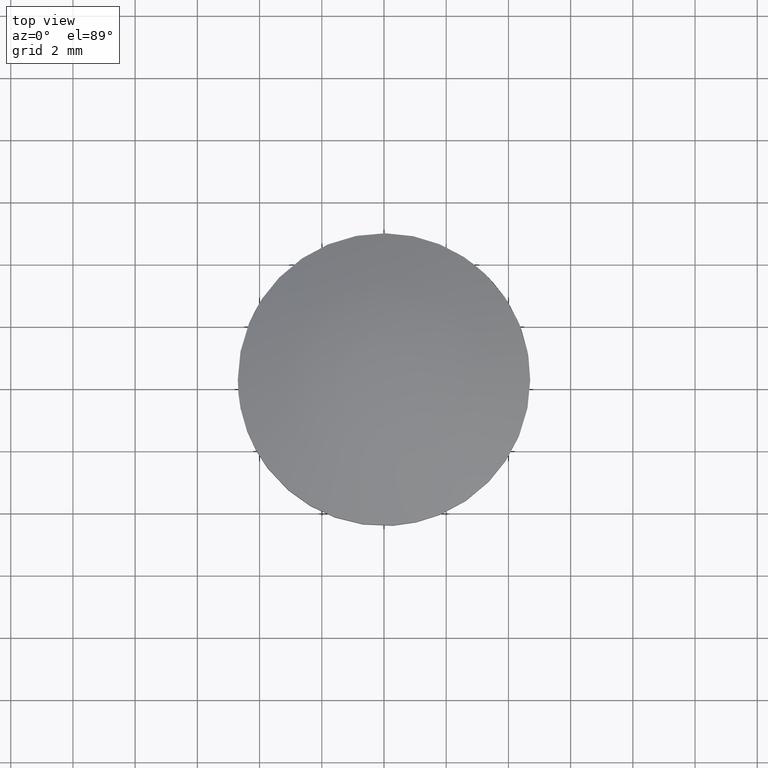
[diagram: clean part render]
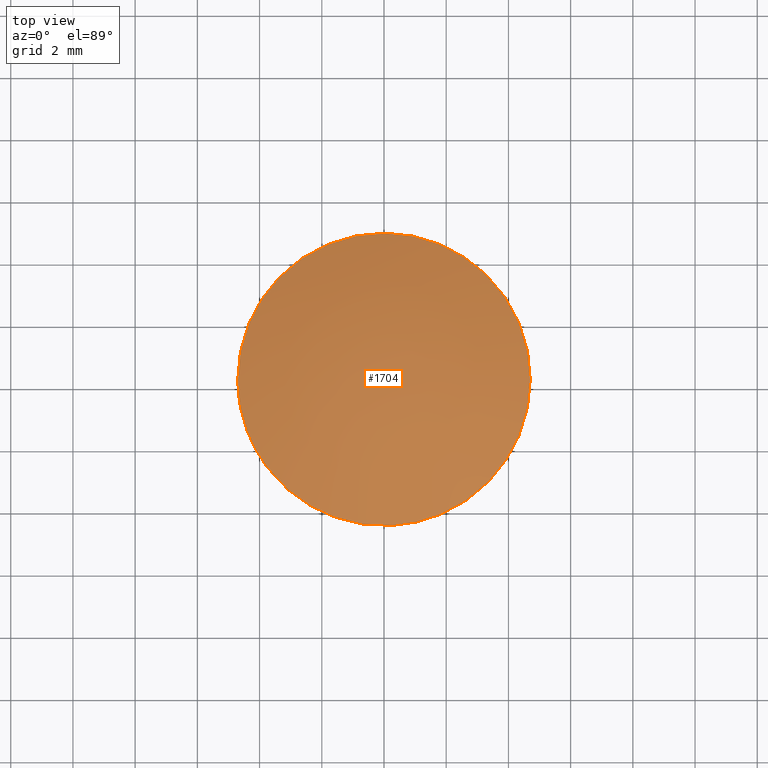
[diagram: same view with one face highlighted and labeled with its STEP entity id]
A machine part, top view. The second image highlights one B-rep face of the part: STEP entity #1704.
In plain terms, the highlighted face is a freeform B-spline surface patch.
Its self-contained STEP definition (entity closure, byte-faithful):
#1327=CARTESIAN_POINT('',(-4.399881813166960,-1.652602831381717,5.499996454043682));
#1328=VERTEX_POINT('',#1327);
#1334=CARTESIAN_POINT('',(-4.700007955760090,0.0,5.499996454043680));
#1335=VERTEX_POINT('',#1334);
#1336=CARTESIAN_POINT('',(-4.399881813166959,-1.652602831381717,5.499996454043682));
#1337=CARTESIAN_POINT('',(-4.700007024792281,-0.853553742750973,5.499996454043681));
#1338=CARTESIAN_POINT('',(-4.700007955760090,0.0,5.499996454043680));
#1346=(BOUNDED_CURVE()B_SPLINE_CURVE(2,(#1336,#1337,#1338),.UNSPECIFIED.,.F.,.U.)B_SPLINE_CURVE_WITH_KNOTS((3,3),(0.940284305386098,1.0),.UNSPECIFIED.)CURVE()GEOMETRIC_REPRESENTATION_ITEM()RATIONAL_B_SPLINE_CURVE((0.893499719216330,0.930038711963413,1.0))REPRESENTATION_ITEM(''));
#1347=EDGE_CURVE('',#1328,#1335,#1346,.T.);
#1349=CARTESIAN_POINT('',(4.700007955760090,0.0,5.499996454043680));
#1350=VERTEX_POINT('',#1349);
#1351=CARTESIAN_POINT('',(-4.700007955760090,0.0,5.499996454043680));
#1352=CARTESIAN_POINT('',(-4.700007955760091,4.700007955760091,5.499996454043679));
#1353=CARTESIAN_POINT('',(0.0,4.700007955760090,5.499996454043680));
#1354=CARTESIAN_POINT('',(4.700007955760091,4.700007955760091,5.499996454043679));
#1355=CARTESIAN_POINT('',(4.700007955760090,0.0,5.499996454043680));
#1363=(BOUNDED_CURVE()B_SPLINE_CURVE(2,(#1351,#1352,#1353,#1354,#1355),.UNSPECIFIED.,.F.,.U.)B_SPLINE_CURVE_WITH_KNOTS((3,2,3),(0.0,0.250000000000000,0.500000000000000),.UNSPECIFIED.)CURVE()GEOMETRIC_REPRESENTATION_ITEM()RATIONAL_B_SPLINE_CURVE((1.0,0.707106781186548,1.0,0.707106781186548,1.0))REPRESENTATION_ITEM(''));
#1364=EDGE_CURVE('',#1335,#1350,#1363,.T.);
#1366=CARTESIAN_POINT('',(0.286922604925091,-4.691239868829175,5.499996454043680));
#1367=VERTEX_POINT('',#1366);
#1368=CARTESIAN_POINT('',(4.700007955760090,0.0,5.499996454043680));
#1369=CARTESIAN_POINT('',(4.700007895050281,-4.421330572229587,5.499996454043682));
#1370=CARTESIAN_POINT('',(0.286922604925091,-4.691239868829175,5.499996454043680));
#1378=(BOUNDED_CURVE()B_SPLINE_CURVE(2,(#1368,#1369,#1370),.UNSPECIFIED.,.F.,.U.)B_SPLINE_CURVE_WITH_KNOTS((3,3),(0.500000000000000,0.739333179069552),.UNSPECIFIED.)CURVE()GEOMETRIC_REPRESENTATION_ITEM()RATIONAL_B_SPLINE_CURVE((1.0,0.719603739253850,0.976072506376430))REPRESENTATION_ITEM(''));
#1379=EDGE_CURVE('',#1350,#1367,#1378,.T.);
#1485=CARTESIAN_POINT('',(0.286922604925091,-4.691239868829175,5.499996454043680));
#1486=CARTESIAN_POINT('',(0.143595194321125,-4.700005997114269,5.499996454043680));
#1487=CARTESIAN_POINT('',(-0.000000037626904,-4.700006024852133,5.499996454043680));
#1488=CARTESIAN_POINT('',(-3.255272638528155,-4.700006653663442,5.499996454043680));
#1489=CARTESIAN_POINT('',(-4.399881813166959,-1.652602831381717,5.499996454043682));
#1497=(BOUNDED_CURVE()B_SPLINE_CURVE(2,(#1485,#1486,#1487,#1488,#1489),.UNSPECIFIED.,.F.,.U.)B_SPLINE_CURVE_WITH_KNOTS((3,2,3),(0.739333179069552,0.750000000000000,0.940284305386098),.UNSPECIFIED.)CURVE()GEOMETRIC_REPRESENTATION_ITEM()RATIONAL_B_SPLINE_CURVE((0.976072506376430,0.987503041932698,1.0,0.777068069223135,0.893499719216330))REPRESENTATION_ITEM(''));
#1498=EDGE_CURVE('',#1367,#1328,#1497,.T.);
#1674=CARTESIAN_POINT('',(-4.870205120807079,-4.869393744743670,4.220912347951355));
#1675=CARTESIAN_POINT('',(-2.561541501372446,-5.122229497232055,5.301486842290377));
#1676=CARTESIAN_POINT('',(2.561541572529098,-5.122229497232055,5.301486842290377));
#1677=CARTESIAN_POINT('',(4.870205242739899,-4.869393731390070,4.220912290880466));
#1678=CARTESIAN_POINT('',(-5.122994377749155,-2.561070443500621,5.301108138114181));
#1679=CARTESIAN_POINT('',(-2.701780545688231,-2.701330429110193,6.500000000000093));
#1680=CARTESIAN_POINT('',(2.701780620740560,-2.701330429110193,6.500000000000093));
#1681=CARTESIAN_POINT('',(5.122994505281703,-2.561070436112710,5.301108074964970));
#1682=CARTESIAN_POINT('',(-5.122994377749155,2.561476993374000,5.301108138114186));
#1683=CARTESIAN_POINT('',(-2.701780545688231,2.701759244157703,6.500000000000099));
#1684=CARTESIAN_POINT('',(2.701780620740560,2.701759244157703,6.500000000000099));
#1685=CARTESIAN_POINT('',(5.122994505281703,2.561476985984915,5.301108074964973));
#1686=CARTESIAN_POINT('',(-4.870128819504222,4.870090422159969,4.220586304245513));
#1687=CARTESIAN_POINT('',(-2.561499286072120,5.122958181110025,5.301126061217300));
#1688=CARTESIAN_POINT('',(2.561499357227599,5.122958181110025,5.301126061217300));
#1689=CARTESIAN_POINT('',(4.870128941435337,4.870090408804663,4.220586247176404));
#1697=(BOUNDED_SURFACE()B_SPLINE_SURFACE(2,2,((#1674,#1678,#1682,#1686),(#1675,#1679,#1683,#1687),(#1676,#1680,#1684,#1688),(#1677,#1681,#1685,#1689)),.UNSPECIFIED.,.F.,.F.,.U.)B_SPLINE_SURFACE_WITH_KNOTS((3,1,3),(3,1,3),(1.723461795580387,6.875763190119319,12.028064727783200),(1.724320168876648,6.875763190119320,12.028023962593080),.UNSPECIFIED.)GEOMETRIC_REPRESENTATION_ITEM()RATIONAL_B_SPLINE_SURFACE(((1.109514067136663,1.054766156848796,1.054766156848796,1.109531450120152),(1.054747910287866,1.0,1.0,1.054765293271357),(1.054747910287866,1.0,1.0,1.054765293271357),(1.109514070179343,1.054766159891477,1.054766159891477,1.109531453162833)))REPRESENTATION_ITEM('')SURFACE());
#1698=ORIENTED_EDGE('',*,*,#1347,.F.);
#1699=ORIENTED_EDGE('',*,*,#1498,.F.);
#1700=ORIENTED_EDGE('',*,*,#1379,.F.);
#1701=ORIENTED_EDGE('',*,*,#1364,.F.);
#1702=EDGE_LOOP('',(#1698,#1699,#1700,#1701));
#1703=FACE_OUTER_BOUND('',#1702,.T.);
#1704=ADVANCED_FACE('',(#1703),#1697,.T.);